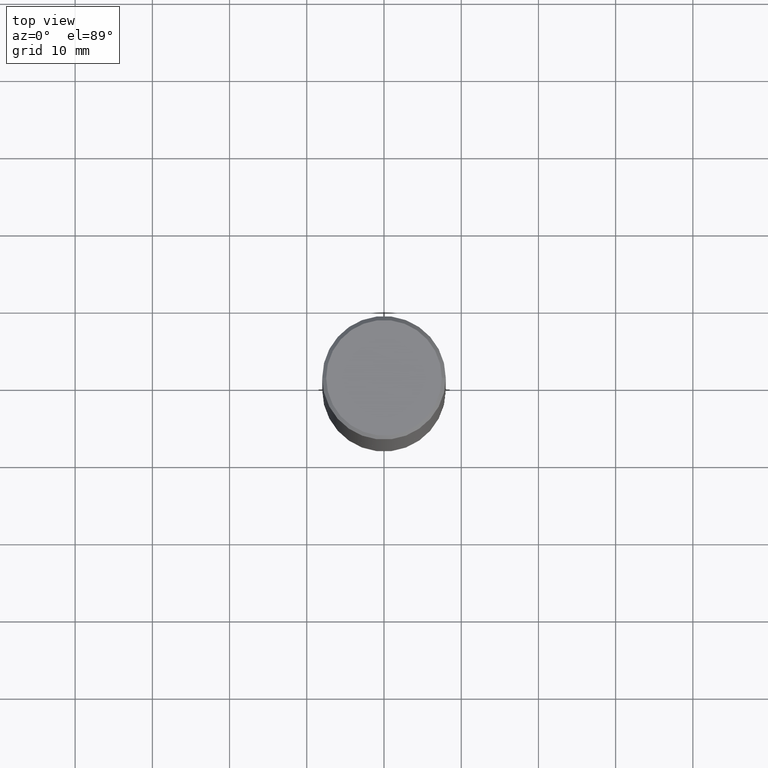
[diagram: clean part render]
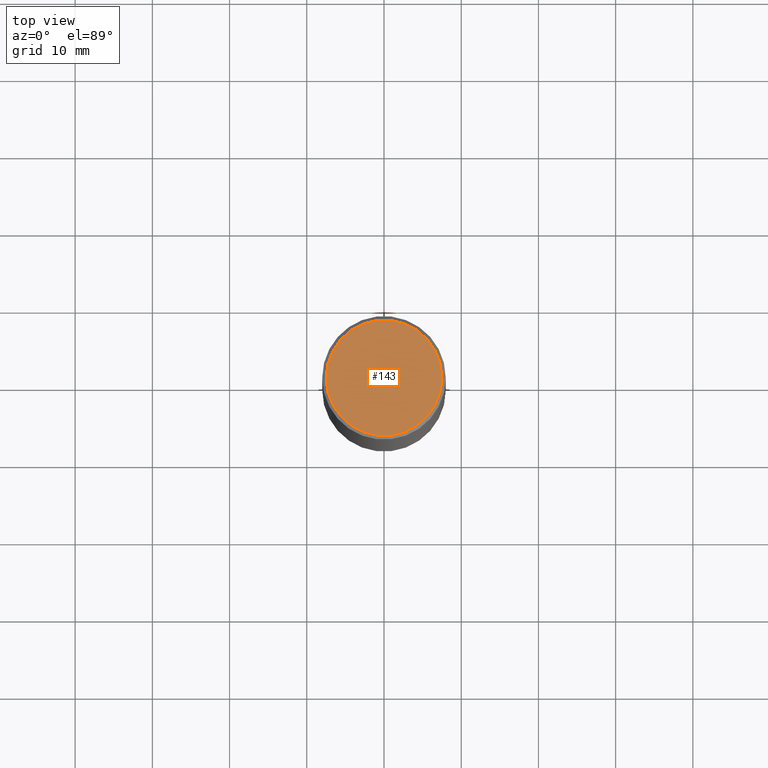
[diagram: same view with one face highlighted and labeled with its STEP entity id]
A machine part, top view. The second image highlights one B-rep face of the part: STEP entity #143.
In plain terms, the highlighted planar face has unit normal (0, -0, -1).
Its self-contained STEP definition (entity closure, byte-faithful):
#62 = DIRECTION ( 'NONE',  ( 1.000000000000000000, -6.982962677686267499E-15, 4.874125435057324435E-29 ) ) ;
#85 = EDGE_LOOP ( 'NONE', ( #392, #164 ) ) ;
#96 = CARTESIAN_POINT ( 'NONE',  ( -4.384175940207923203E-45, 6.259441315597878405E-31, 1.792775245842172799E-16 ) ) ;
#109 = CARTESIAN_POINT ( 'NONE',  ( -0.2949499999999998234, 2.094539655171995318E-15, 1.792775245842027353E-16 ) ) ;
#142 = CARTESIAN_POINT ( 'NONE',  ( 0.2949499999999998234, -2.127023677808859286E-15, 1.792775245842319231E-16 ) ) ;
#143 = ADVANCED_FACE ( 'NONE', ( #362 ), #314, .F. ) ;
#164 = ORIENTED_EDGE ( 'NONE', *, *, #403, .T. ) ;
#211 = CIRCLE ( 'NONE', #220, 0.2949499999999998234 ) ;
#220 = AXIS2_PLACEMENT_3D ( 'NONE', #96, #352, #325 ) ;
#225 = VERTEX_POINT ( 'NONE', #142 ) ;
#260 = CARTESIAN_POINT ( 'NONE',  ( -4.384175940207923203E-45, 6.259441315597878405E-31, 1.792775245842172799E-16 ) ) ;
#265 = CIRCLE ( 'NONE', #405, 0.2949499999999998234 ) ;
#284 = DIRECTION ( 'NONE',  ( 2.438088387897960049E-29, -3.491481338843145188E-15, -1.000000000000000000 ) ) ;
#299 = AXIS2_PLACEMENT_3D ( 'NONE', #365, #284, #402 ) ;
#301 = VERTEX_POINT ( 'NONE', #109 ) ;
#314 = PLANE ( 'NONE',  #299 ) ;
#325 = DIRECTION ( 'NONE',  ( 1.000000000000000000, -6.982962677686267499E-15, 4.874125435057324435E-29 ) ) ;
#352 = DIRECTION ( 'NONE',  ( -2.445468806185136597E-29, 3.491481338843145583E-15, 1.000000000000000000 ) ) ;
#362 = FACE_OUTER_BOUND ( 'NONE', #85, .T. ) ;
#365 = CARTESIAN_POINT ( 'NONE',  ( 2.059624841783562880E-15, 0.2949499999999998234, -9.401736585996764239E-16 ) ) ;
#371 = EDGE_CURVE ( 'NONE', #301, #225, #265, .T. ) ;
#380 = DIRECTION ( 'NONE',  ( -2.445468806185136597E-29, 3.491481338843145583E-15, 1.000000000000000000 ) ) ;
#392 = ORIENTED_EDGE ( 'NONE', *, *, #371, .T. ) ;
#402 = DIRECTION ( 'NONE',  ( -1.000000000000000000, 6.982962677686265922E-15, -4.876176775795935793E-29 ) ) ;
#403 = EDGE_CURVE ( 'NONE', #225, #301, #211, .T. ) ;
#405 = AXIS2_PLACEMENT_3D ( 'NONE', #260, #380, #62 ) ;